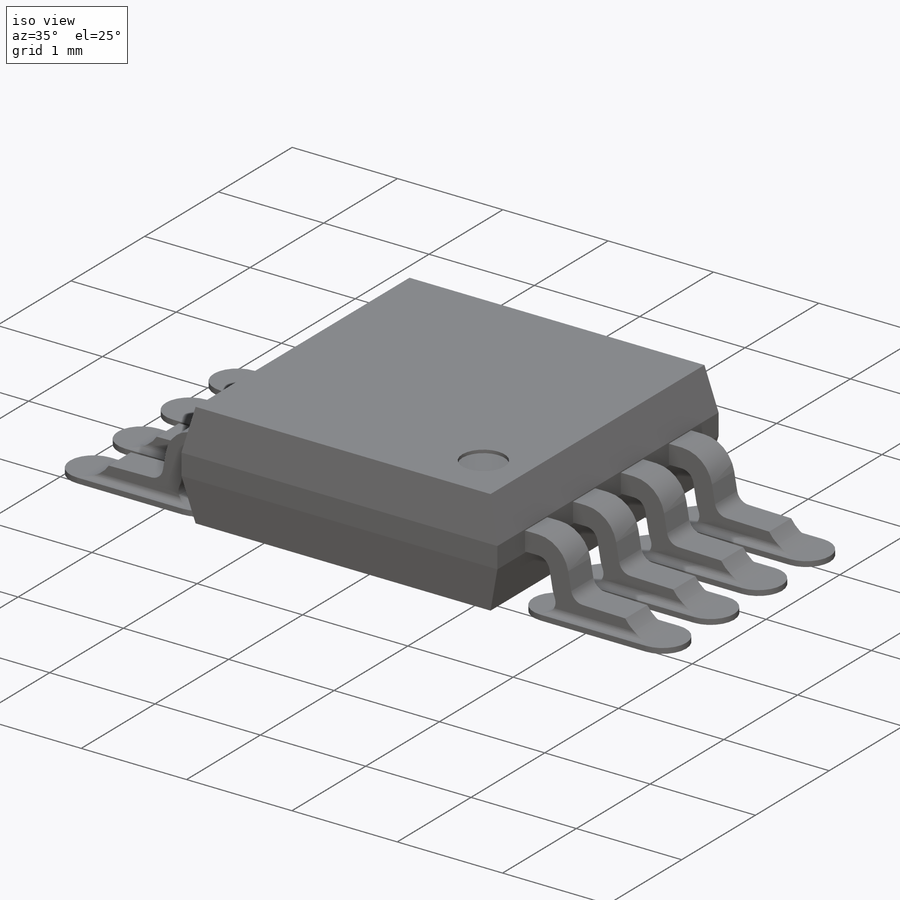
[diagram: iso view]
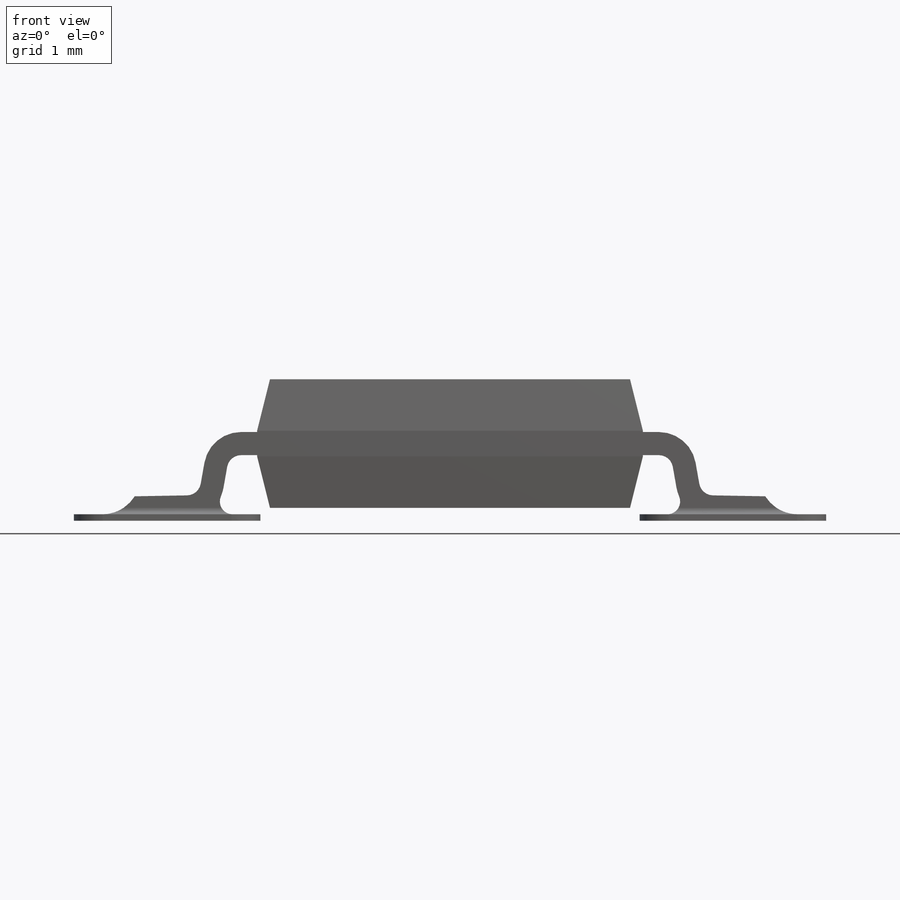
[diagram: front view]
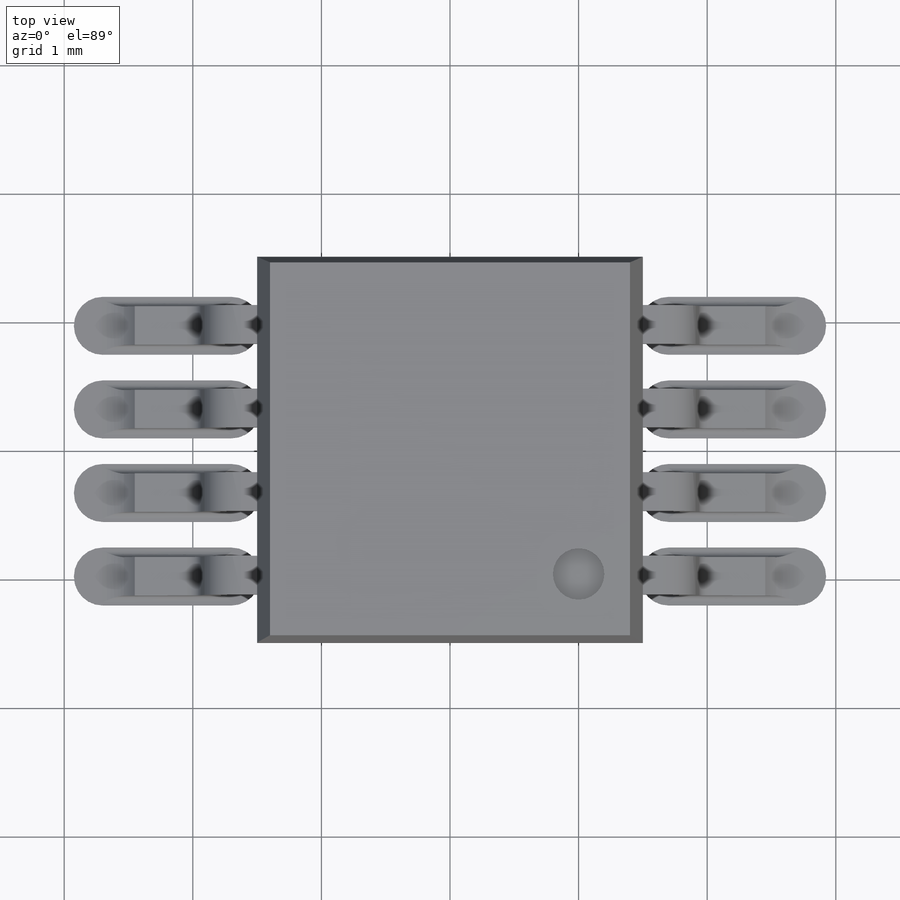
[diagram: top view]
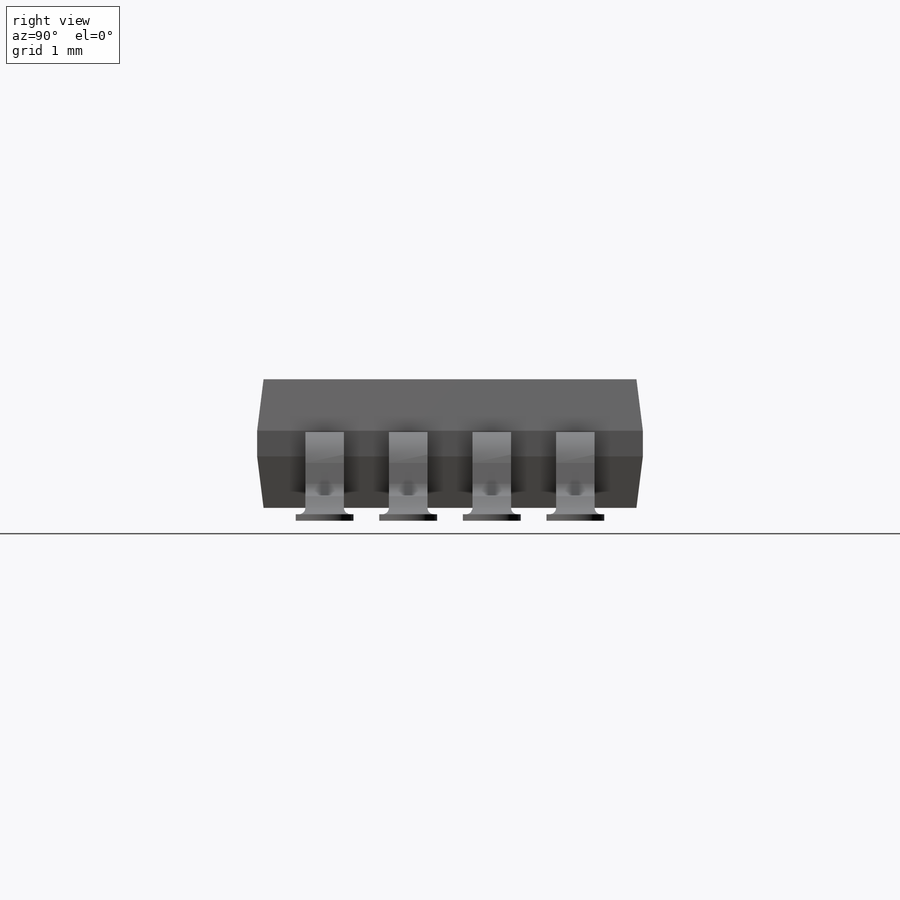
[diagram: right view]
SOLIDWORKS PART (.sldprt)
format: sldprt  version: not decoded by parser v0  size: 697,344 bytes
history: native  units: mm
features: sketch x5, plane x3, fillet x3, extrude x2, cut_extrude x2, material x1, pattern_linear x1 (+12 scaffold rows collapsed)
feature tree (29):
  scaffold x12  (default folders/planes/origin — collapsed)
  material  "Material <not specified>"
  plane  "Plane1"
  plane  "Plane5"  Offset=0.975mm
  sketch  "Sketch1"  dims[c1.D5=4.0mm c1.D1=1.0mm c1.D2=3.0mm c1.D3=1.5mm c1.D4=0.1mm c1.D6=2.8mm c2.D5=0.2mm c2.D7=1.4mm c2.D8=0.1mm c2.D9=3.9mm]
  extrude  "Boss-Extrude1"  Depth=3mm
  plane  "Plane2"
  sketch  "Sketch4"  dims[D1=0.05mm D2=0.2mm D3=0.2mm D4=0.05mm]
  cut_extrude  "Cut-Extrude2"  [1 undecoded]
  sketch  "Sketch2"  dims[c1.D8=0.2mm c1.D1=4.9mm c1.D2=6.0mm c1.D3=3.0mm c1.D4=0.925mm c1.D5=5.0mm c2.D4=0.875mm c2.D5=0.5mm c2.D6=5.5mm c3.D4=0.6mm c3.D6=0.7mm c3.D7=1.1mm c3.D2=0.7mm c3.D3=~0.25592mm c4.D3=1.0deg c4.D7=5.83mm c5.D7=1.0deg c5.D9=2.45mm c5.D2=~0.778221mm c6.D2=10.0deg c6.D6=~0.802218mm c7.D6=10.0deg c7.D10=0.6mm c7.D11=0.6mm c7.D12=0.1mm c7.D13=0.1mm c7.D1=0.3mm c7.D5=0.18mm c8.D6=1.0mm c8.D7=0.0001mm]
  sketch  "Sketch5"  dims[D1=0.45mm D2=1.0mm D3=1.0mm D4=2.2mm D5=2.2mm]
  extrude  "Boss-Extrude2"  Depth=0.05mm
  fillet  "Fillet5"  Radius=0.1mm
  fillet  "Fillet6"  Radius=0.05mm
  fillet  "Fillet7"  Radius=0.3mm
  pattern_linear  "LPattern1"  Count1=4 Count2=1 Spacing1=0.65mm Spacing2=10mm
  sketch  "Sketch3"  dims[c1.D1=0.8mm c1.D3=0.4mm c2.D1=1.0mm c2.D2=0.0mm]
  cut_extrude  "Cut-Extrude1"  Depth=0.03mm
decode coverage: 12 of 13 modeling features carry decoded parameters
note: ~ marks probable driven/reference dimensions
note: 1 parameter value undecoded
note: suppression state not decoded; provenance and decode notes live in map.json
